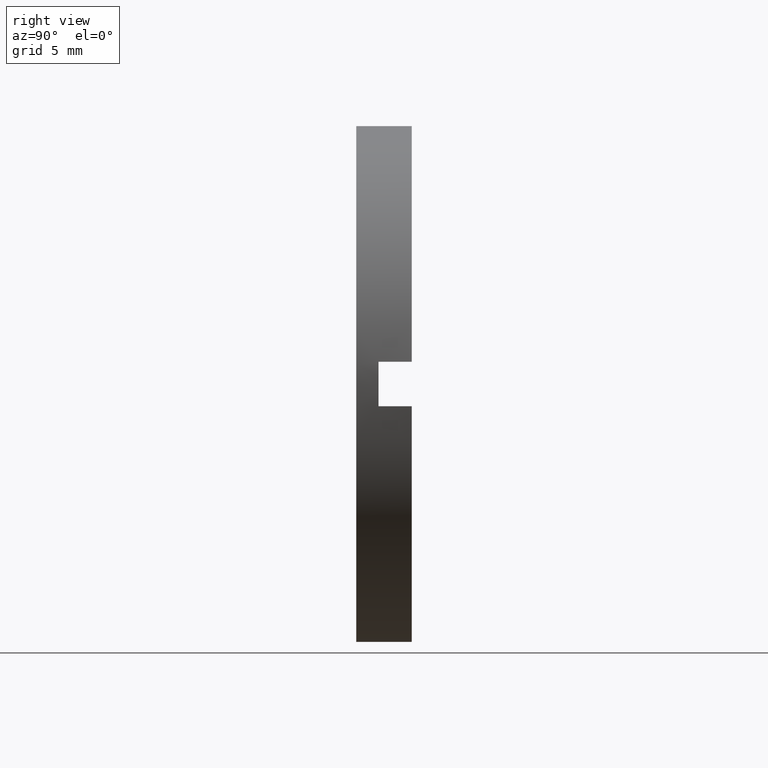
[diagram: clean part render]
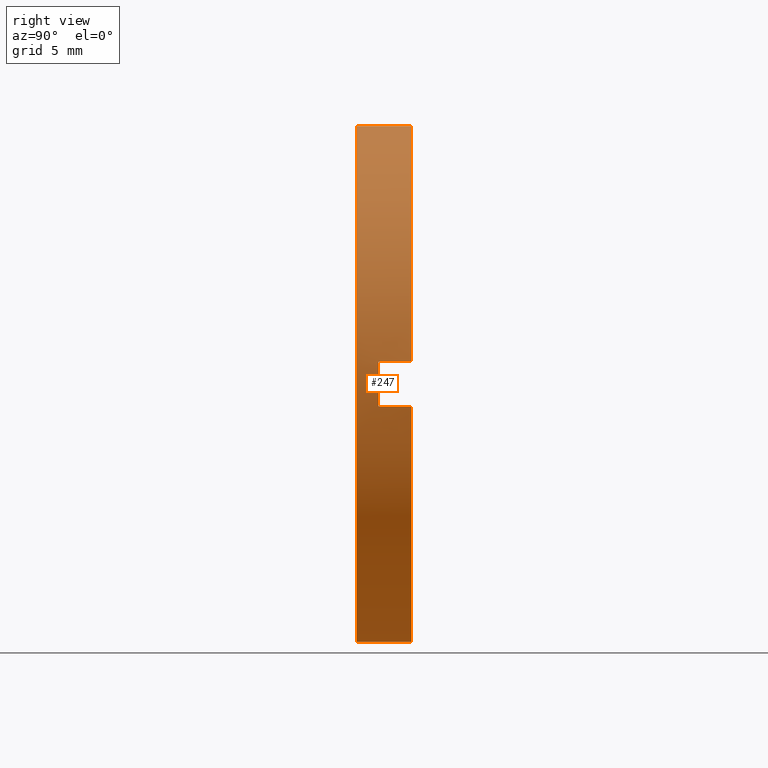
[diagram: same view with one face highlighted and labeled with its STEP entity id]
A machine part, right view. The second image highlights one B-rep face of the part: STEP entity #247.
In plain terms, the highlighted cylindrical surface (partial cylindrical patch) has radius 11.6 mm, axis along (-0, 1, -0).
Its self-contained STEP definition (entity closure, byte-faithful):
#6 = CIRCLE ( 'NONE', #53, 11.60000000000000700 ) ;
#10 = VERTEX_POINT ( 'NONE', #241 ) ;
#17 = AXIS2_PLACEMENT_3D ( 'NONE', #125, #360, #390 ) ;
#37 = VERTEX_POINT ( 'NONE', #143 ) ;
#48 = ORIENTED_EDGE ( 'NONE', *, *, #127, .T. ) ;
#53 = AXIS2_PLACEMENT_3D ( 'NONE', #339, #335, #387 ) ;
#68 = ORIENTED_EDGE ( 'NONE', *, *, #115, .F. ) ;
#69 = VECTOR ( 'NONE', #243, 1000.000000000000000 ) ;
#70 = CARTESIAN_POINT ( 'NONE',  ( 0.0000000000000000000, -4.464249787179428900, 11.60000000000000700 ) ) ;
#80 = CARTESIAN_POINT ( 'NONE',  ( 0.0000000000000000000, -4.464249787179428900, 0.0000000000000000000 ) ) ;
#92 = ORIENTED_EDGE ( 'NONE', *, *, #505, .T. ) ;
#94 = EDGE_CURVE ( 'NONE', #349, #375, #194, .T. ) ;
#98 = LINE ( 'NONE', #576, #215 ) ;
#111 = EDGE_CURVE ( 'NONE', #349, #37, #365, .T. ) ;
#115 = EDGE_CURVE ( 'NONE', #10, #37, #6, .T. ) ;
#125 = CARTESIAN_POINT ( 'NONE',  ( 0.0000000000000000000, -1.964249787179434000, 0.0000000000000000000 ) ) ;
#127 = EDGE_CURVE ( 'NONE', #168, #375, #98, .T. ) ;
#143 = CARTESIAN_POINT ( 'NONE',  ( 11.55681617055493900, -3.464249787179428400, -0.9999999999999995600 ) ) ;
#168 = VERTEX_POINT ( 'NONE', #521 ) ;
#179 = ORIENTED_EDGE ( 'NONE', *, *, #366, .T. ) ;
#181 = AXIS2_PLACEMENT_3D ( 'NONE', #80, #308, #258 ) ;
#194 = CIRCLE ( 'NONE', #389, 11.60000000000000700 ) ;
#201 = EDGE_LOOP ( 'NONE', ( #92, #48, #281, #409, #68, #179, #579, #478 ) ) ;
#207 = CARTESIAN_POINT ( 'NONE',  ( 11.55681617055494000, 56.26084262701361600, 1.000000000000000000 ) ) ;
#215 = VECTOR ( 'NONE', #569, 1000.000000000000000 ) ;
#223 = EDGE_CURVE ( 'NONE', #305, #362, #384, .T. ) ;
#238 = VECTOR ( 'NONE', #426, 1000.000000000000000 ) ;
#241 = CARTESIAN_POINT ( 'NONE',  ( 11.55681617055493900, -3.464249787179428400, 0.9999999999999995600 ) ) ;
#243 = DIRECTION ( 'NONE',  ( -0.0000000000000000000, 1.000000000000000000, -0.0000000000000000000 ) ) ;
#247 = ADVANCED_FACE ( 'NONE', ( #479 ), #580, .T. ) ;
#258 = DIRECTION ( 'NONE',  ( 0.0000000000000000000, 0.0000000000000000000, 1.000000000000000000 ) ) ;
#262 = VERTEX_POINT ( 'NONE', #465 ) ;
#277 = VECTOR ( 'NONE', #517, 1000.000000000000000 ) ;
#281 = ORIENTED_EDGE ( 'NONE', *, *, #94, .F. ) ;
#305 = VERTEX_POINT ( 'NONE', #70 ) ;
#308 = DIRECTION ( 'NONE',  ( -0.0000000000000000000, 1.000000000000000000, -0.0000000000000000000 ) ) ;
#333 = CARTESIAN_POINT ( 'NONE',  ( 1.420590287010930300E-015, -1.964249787179434000, -11.60000000000000700 ) ) ;
#335 = DIRECTION ( 'NONE',  ( 0.0000000000000000000, 1.000000000000000000, 0.0000000000000000000 ) ) ;
#338 = LINE ( 'NONE', #207, #69 ) ;
#339 = CARTESIAN_POINT ( 'NONE',  ( 0.0000000000000000000, -3.464249787179428400, 0.0000000000000000000 ) ) ;
#347 = DIRECTION ( 'NONE',  ( -0.0000000000000000000, 1.000000000000000000, -0.0000000000000000000 ) ) ;
#349 = VERTEX_POINT ( 'NONE', #382 ) ;
#359 = CIRCLE ( 'NONE', #181, 11.60000000000000700 ) ;
#360 = DIRECTION ( 'NONE',  ( -0.0000000000000000000, 1.000000000000000000, -0.0000000000000000000 ) ) ;
#362 = VERTEX_POINT ( 'NONE', #472 ) ;
#365 = LINE ( 'NONE', #564, #238 ) ;
#366 = EDGE_CURVE ( 'NONE', #10, #262, #338, .T. ) ;
#375 = VERTEX_POINT ( 'NONE', #333 ) ;
#379 = DIRECTION ( 'NONE',  ( -0.0000000000000000000, 1.000000000000000000, -0.0000000000000000000 ) ) ;
#382 = CARTESIAN_POINT ( 'NONE',  ( 11.55681617055492800, -1.964249787179430900, -1.000000000000000000 ) ) ;
#384 = LINE ( 'NONE', #509, #277 ) ;
#387 = DIRECTION ( 'NONE',  ( 0.0000000000000000000, 0.0000000000000000000, 1.000000000000000000 ) ) ;
#389 = AXIS2_PLACEMENT_3D ( 'NONE', #574, #379, #463 ) ;
#390 = DIRECTION ( 'NONE',  ( 0.0000000000000000000, 0.0000000000000000000, 1.000000000000000000 ) ) ;
#409 = ORIENTED_EDGE ( 'NONE', *, *, #111, .T. ) ;
#426 = DIRECTION ( 'NONE',  ( 0.0000000000000000000, -1.000000000000000000, 0.0000000000000000000 ) ) ;
#461 = DIRECTION ( 'NONE',  ( 0.0000000000000000000, 0.0000000000000000000, 1.000000000000000000 ) ) ;
#463 = DIRECTION ( 'NONE',  ( 0.0000000000000000000, 0.0000000000000000000, 1.000000000000000000 ) ) ;
#465 = CARTESIAN_POINT ( 'NONE',  ( 11.55681617055492800, -1.964249787179430900, 1.000000000000000000 ) ) ;
#472 = CARTESIAN_POINT ( 'NONE',  ( 0.0000000000000000000, -1.964249787179434000, 11.60000000000000700 ) ) ;
#478 = ORIENTED_EDGE ( 'NONE', *, *, #223, .F. ) ;
#479 = FACE_OUTER_BOUND ( 'NONE', #201, .T. ) ;
#482 = AXIS2_PLACEMENT_3D ( 'NONE', #577, #347, #461 ) ;
#499 = EDGE_CURVE ( 'NONE', #362, #262, #533, .T. ) ;
#505 = EDGE_CURVE ( 'NONE', #305, #168, #359, .T. ) ;
#509 = CARTESIAN_POINT ( 'NONE',  ( 0.0000000000000000000, 56.26084262701361600, 11.60000000000000700 ) ) ;
#517 = DIRECTION ( 'NONE',  ( -0.0000000000000000000, 1.000000000000000000, -0.0000000000000000000 ) ) ;
#521 = CARTESIAN_POINT ( 'NONE',  ( 1.420590287010930300E-015, -4.464249787179428900, -11.60000000000000700 ) ) ;
#533 = CIRCLE ( 'NONE', #17, 11.60000000000000700 ) ;
#564 = CARTESIAN_POINT ( 'NONE',  ( 11.55681617055494000, 56.26084262701361600, -1.000000000000000000 ) ) ;
#569 = DIRECTION ( 'NONE',  ( -0.0000000000000000000, 1.000000000000000000, -0.0000000000000000000 ) ) ;
#574 = CARTESIAN_POINT ( 'NONE',  ( 0.0000000000000000000, -1.964249787179434000, 0.0000000000000000000 ) ) ;
#576 = CARTESIAN_POINT ( 'NONE',  ( 1.420590287010930300E-015, 56.26084262701361600, -11.60000000000000700 ) ) ;
#577 = CARTESIAN_POINT ( 'NONE',  ( 0.0000000000000000000, 56.26084262701361600, 0.0000000000000000000 ) ) ;
#579 = ORIENTED_EDGE ( 'NONE', *, *, #499, .F. ) ;
#580 = CYLINDRICAL_SURFACE ( 'NONE', #482, 11.60000000000000700 ) ;